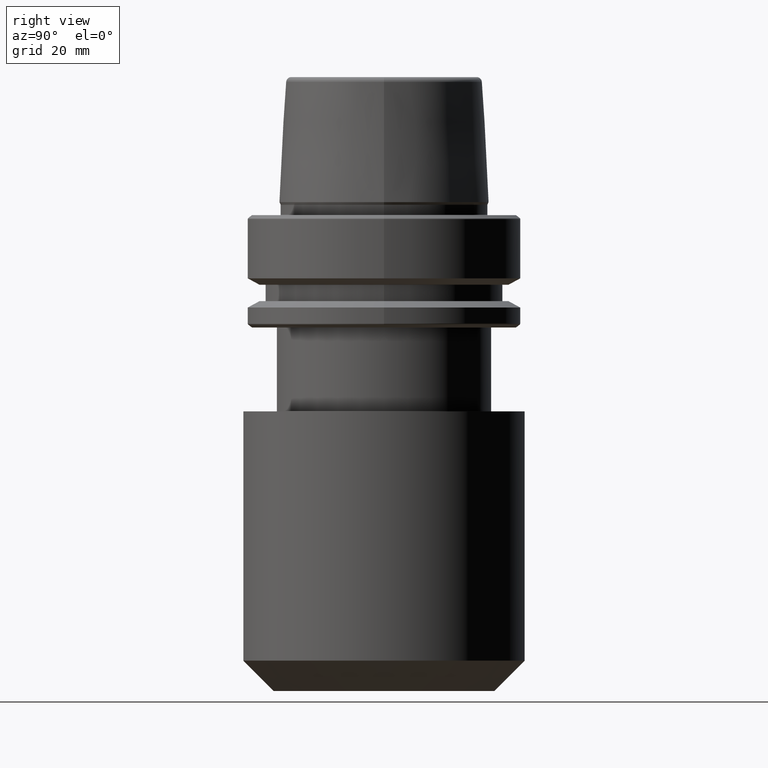
[diagram: clean part render]
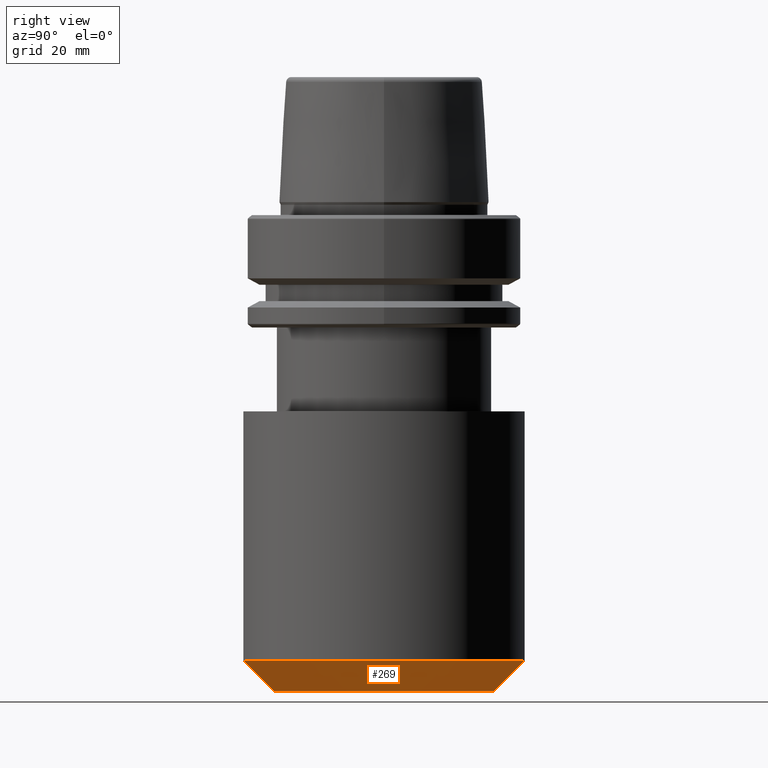
[diagram: same view with one face highlighted and labeled with its STEP entity id]
A machine part, right view. The second image highlights one B-rep face of the part: STEP entity #269.
In plain terms, the highlighted conical surface has half-angle 45 deg.
Its self-contained STEP definition (entity closure, byte-faithful):
#24 = CIRCLE ( 'NONE', #257, 25.50000000000000400 ) ;
#35 = EDGE_CURVE ( 'NONE', #771, #930, #400, .T. ) ;
#102 = EDGE_CURVE ( 'NONE', #1287, #258, #715, .T. ) ;
#150 = DIRECTION ( 'NONE',  ( 0.0000000000000000000, 1.000000000000000000, 0.0000000000000000000 ) ) ;
#165 = AXIS2_PLACEMENT_3D ( 'NONE', #877, #201, #688 ) ;
#201 = DIRECTION ( 'NONE',  ( -0.0000000000000000000, 4.965320723570064500E-017, -1.000000000000000000 ) ) ;
#257 = AXIS2_PLACEMENT_3D ( 'NONE', #394, #259, #150 ) ;
#258 = VERTEX_POINT ( 'NONE', #1060 ) ;
#259 = DIRECTION ( 'NONE',  ( -0.0000000000000000000, 4.965320723570064500E-017, -1.000000000000000000 ) ) ;
#269 = ADVANCED_FACE ( 'NONE', ( #719 ), #550, .T. ) ;
#380 = CARTESIAN_POINT ( 'NONE',  ( 0.0000000000000000000, -25.50000000000001100, -109.9999999999999900 ) ) ;
#394 = CARTESIAN_POINT ( 'NONE',  ( 0.0000000000000000000, -6.123233995736768500E-015, -109.9999999999999900 ) ) ;
#400 = LINE ( 'NONE', #1010, #468 ) ;
#420 = EDGE_CURVE ( 'NONE', #930, #258, #1120, .T. ) ;
#445 = VECTOR ( 'NONE', #1225, 1000.000000000000000 ) ;
#468 = VECTOR ( 'NONE', #1104, 1000.000000000000000 ) ;
#477 = EDGE_LOOP ( 'NONE', ( #1209, #999, #1208, #523 ) ) ;
#520 = CARTESIAN_POINT ( 'NONE',  ( 0.0000000000000000000, -6.123233995736768500E-015, -109.9999999999999900 ) ) ;
#523 = ORIENTED_EDGE ( 'NONE', *, *, #102, .F. ) ;
#531 = DIRECTION ( 'NONE',  ( 0.0000000000000000000, -1.000000000000000000, 0.0000000000000000000 ) ) ;
#550 = CONICAL_SURFACE ( 'NONE', #1115, 25.50000000000000400, 0.7853981633974460600 ) ;
#591 = CARTESIAN_POINT ( 'NONE',  ( 3.551475717527325600E-015, 25.50000000000000000, -109.9999999999999900 ) ) ;
#688 = DIRECTION ( 'NONE',  ( 0.0000000000000000000, 1.000000000000000000, 0.0000000000000000000 ) ) ;
#696 = EDGE_CURVE ( 'NONE', #771, #1287, #24, .T. ) ;
#715 = LINE ( 'NONE', #1031, #445 ) ;
#719 = FACE_OUTER_BOUND ( 'NONE', #477, .T. ) ;
#771 = VERTEX_POINT ( 'NONE', #591 ) ;
#873 = CARTESIAN_POINT ( 'NONE',  ( 0.0000000000000000000, 32.50000000000000000, -102.9999999999999600 ) ) ;
#877 = CARTESIAN_POINT ( 'NONE',  ( 0.0000000000000000000, -6.470806446386675300E-015, -102.9999999999999600 ) ) ;
#910 = DIRECTION ( 'NONE',  ( 0.0000000000000000000, -4.965320723570064500E-017, 1.000000000000000000 ) ) ;
#930 = VERTEX_POINT ( 'NONE', #873 ) ;
#999 = ORIENTED_EDGE ( 'NONE', *, *, #35, .T. ) ;
#1010 = CARTESIAN_POINT ( 'NONE',  ( 3.122849337825751400E-015, 25.50000000000000000, -109.9999999999999900 ) ) ;
#1031 = CARTESIAN_POINT ( 'NONE',  ( 0.0000000000000000000, -25.50000000000001100, -109.9999999999999900 ) ) ;
#1060 = CARTESIAN_POINT ( 'NONE',  ( 3.980102097228899400E-015, -32.50000000000001400, -102.9999999999999600 ) ) ;
#1104 = DIRECTION ( 'NONE',  ( 8.659560562354913100E-017, 0.7071067811865459100, 0.7071067811865491300 ) ) ;
#1115 = AXIS2_PLACEMENT_3D ( 'NONE', #520, #910, #531 ) ;
#1120 = CIRCLE ( 'NONE', #165, 32.50000000000000700 ) ;
#1208 = ORIENTED_EDGE ( 'NONE', *, *, #420, .T. ) ;
#1209 = ORIENTED_EDGE ( 'NONE', *, *, #696, .F. ) ;
#1225 = DIRECTION ( 'NONE',  ( 0.0000000000000000000, -0.7071067811865459100, 0.7071067811865491300 ) ) ;
#1287 = VERTEX_POINT ( 'NONE', #380 ) ;